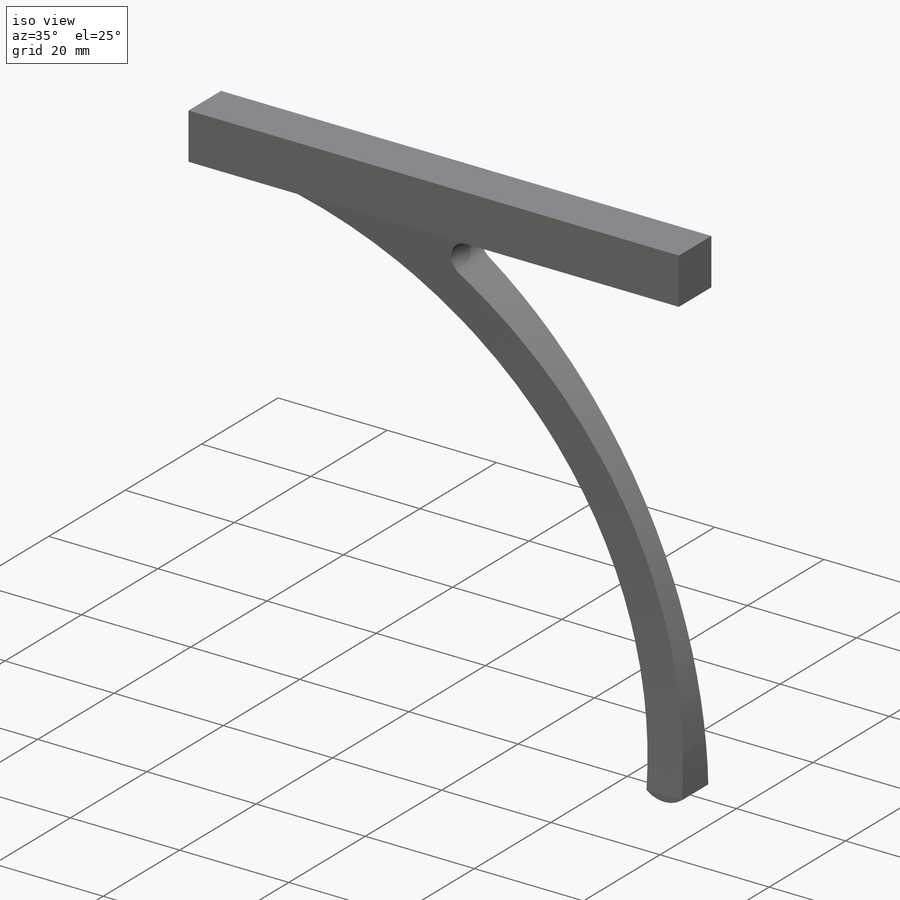
[diagram: iso view]
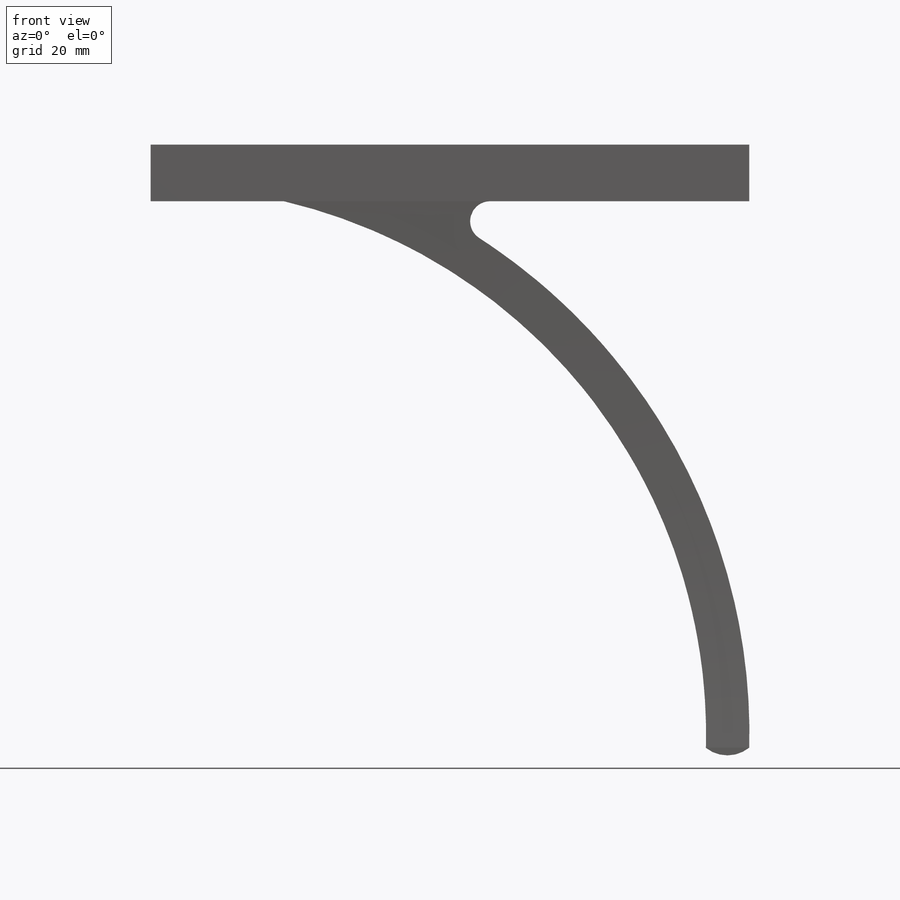
[diagram: front view]
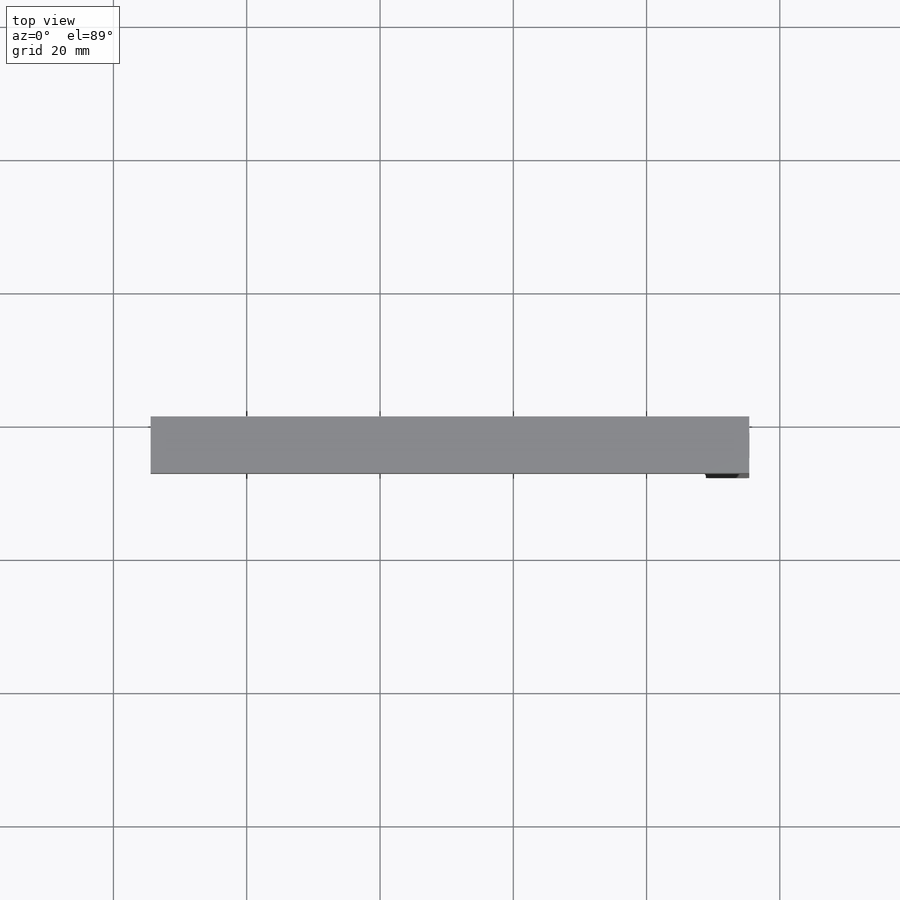
[diagram: top view]
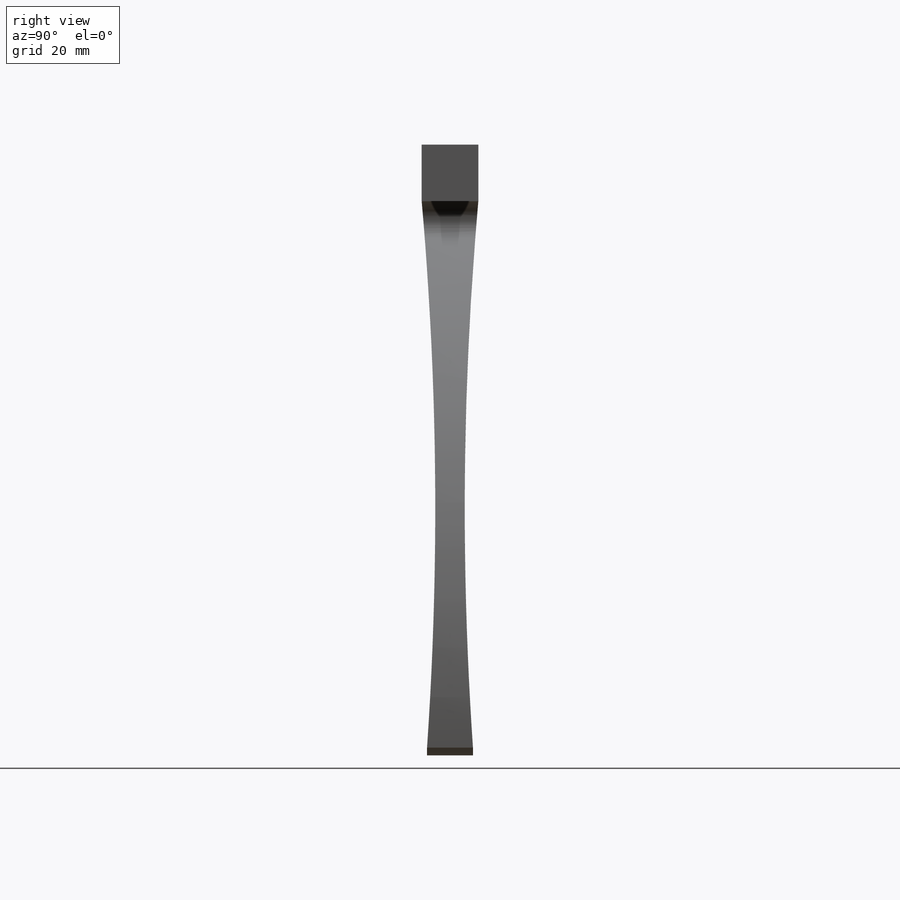
[diagram: right view]
SOLIDWORKS PART (.sldprt)
format: sldprt  version: not decoded by parser v0  size: 153,088 bytes
history: native  units: mm
features: plane x3, sketch x2, material x1, extrude x1, fillet x1, cut_extrude x1 (+10 scaffold rows collapsed)
feature tree (19):
  scaffold x10  (default folders/planes/origin — collapsed)
  material  "Matériau <non spécifié>"
  plane  "Plan de face"
  plane  "Plan de dessus"
  plane  "Plan de droite"
  sketch  "Esquisse1"  dims[c1.D1=~132.377642mm c1.D5=~5.201199mm c1.D4=~80.296466mm c2.D1=8.5mm c2.D2=50.0mm c2.D3=20.0mm c2.D4=15.0mm c3.D2=80.0mm c3.D4=6.5mm]
  extrude  "Boss.-Extru.1"  Depth=8.5mm
  fillet  "Congé1"  Radius=3mm
  sketch  "Esquisse2"  dims[D1=~1.752473mm]
  cut_extrude  "Enlèv. mat.-Extru.1"  Depth=75mm
decode coverage: 5 of 5 modeling features carry decoded parameters
note: ~ marks probable driven/reference dimensions
note: suppression state not decoded; provenance and decode notes live in map.json
